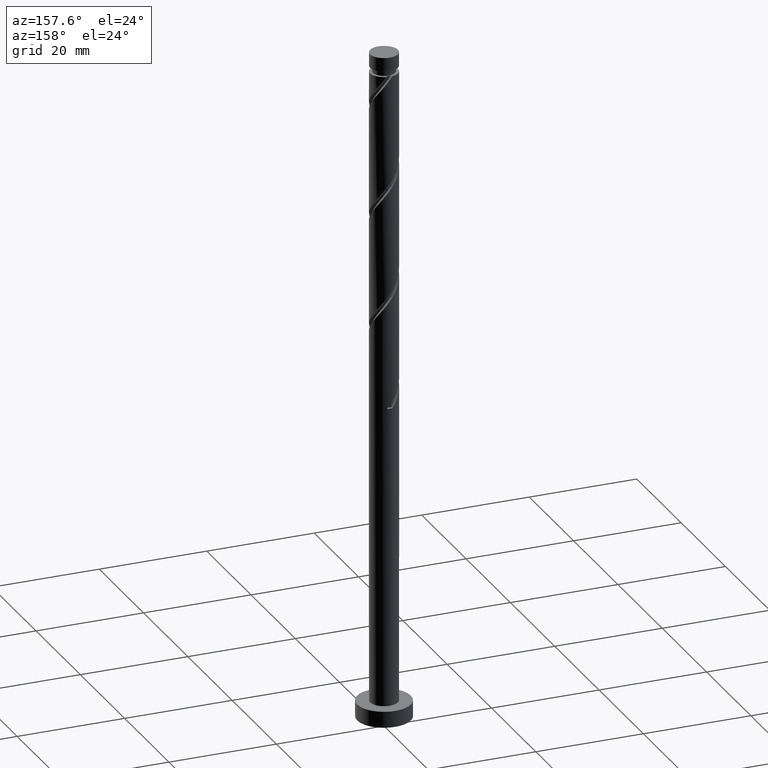
[diagram: clean part render]
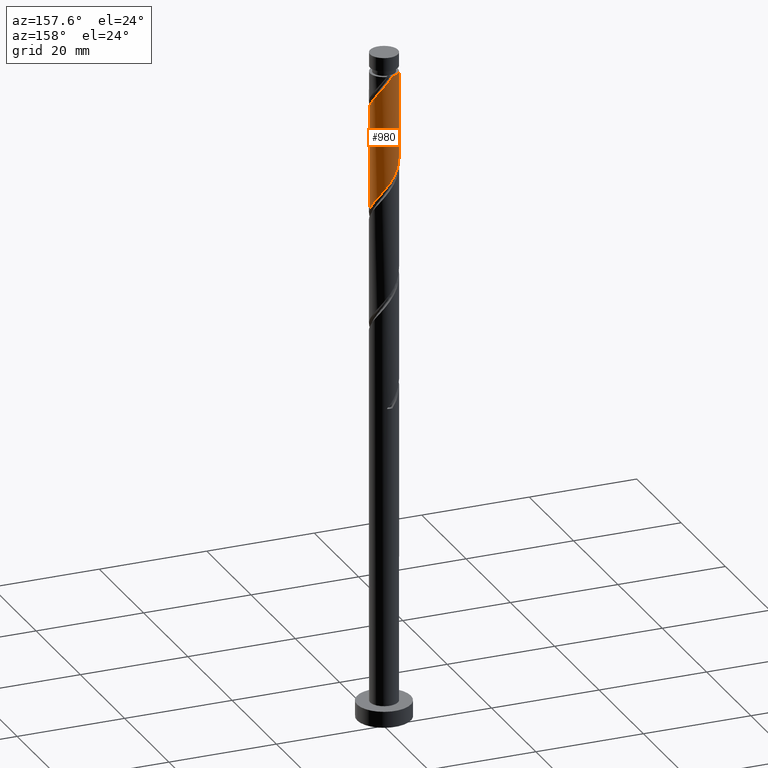
[diagram: same view with one face highlighted and labeled with its STEP entity id]
A machine part, auxiliary view. The second image highlights one B-rep face of the part: STEP entity #980.
In plain terms, the highlighted cylindrical surface (edge-blend (fillet) strip) has radius 2.6 mm, axis along (-0, -0, -1).
Its self-contained STEP definition (entity closure, byte-faithful):
#12 = ORIENTED_EDGE ( 'NONE', *, *, #745, .F. ) ;
#20 = EDGE_CURVE ( 'NONE', #40, #139, #1203, .T. ) ;
#25 = EDGE_LOOP ( 'NONE', ( #12, #870, #102, #342, #1351 ) ) ;
#40 = VERTEX_POINT ( 'NONE', #196 ) ;
#44 = CARTESIAN_POINT ( 'NONE',  ( 1.079096715020632535, 2.365491551376099011, 119.3381527913151103 ) ) ;
#48 = CARTESIAN_POINT ( 'NONE',  ( 1.916256930661813573, 1.757259051958635965, 98.50481945798182437 ) ) ;
#72 = CARTESIAN_POINT ( 'NONE',  ( 0.2953048731074934263, 2.583175377692925156, 120.3798194579818102 ) ) ;
#102 = ORIENTED_EDGE ( 'NONE', *, *, #20, .F. ) ;
#107 = CARTESIAN_POINT ( 'NONE',  ( -0.5173934672954414449, 2.547999999999995602, 121.4214861246484247 ) ) ;
#123 = CARTESIAN_POINT ( 'NONE',  ( -2.600000000000000089, 0.000000000000000000, 125.0000000000000000 ) ) ;
#132 = VERTEX_POINT ( 'NONE', #203 ) ;
#139 = VERTEX_POINT ( 'NONE', #245 ) ;
#196 = CARTESIAN_POINT ( 'NONE',  ( -2.599999999999999645, -1.544289586670198367E-15, 106.4612885661187391 ) ) ;
#203 = CARTESIAN_POINT ( 'NONE',  ( -2.599999999999997424, 0.000000000000000000, 121.4214861246484674 ) ) ;
#242 =( BOUNDED_CURVE ( )  B_SPLINE_CURVE ( 2, ( #430, #642, #311, #1373, #1128, #1134, #438, #788, #44, #1261, #72, #1500, #523 ),
 .UNSPECIFIED., .F., .T. ) 
 B_SPLINE_CURVE_WITH_KNOTS ( ( 3, 2, 2, 2, 2, 2, 3 ),
 ( 0.6795322023138551382, 0.6875000000000000000, 0.6999999999999999556, 0.7125000000000000222, 0.7249999999999999778, 0.7375000000000000444, 0.7500000000000000000 ),
 .UNSPECIFIED. ) 
 CURVE ( )  GEOMETRIC_REPRESENTATION_ITEM ( )  RATIONAL_B_SPLINE_CURVE ( ( 0.9039174447099420640, 0.9019565955404713620, 0.9090909090909198298, 0.8978984914501358938, 0.9090909090909198298, 0.8978984914501358938, 0.9090909090909198298, 0.8978984914501358938, 0.9090909090909198298, 0.8978984914501358938, 0.9090909090909198298, 0.8978984914501358938, 0.9090909090909198298 ) ) 
 REPRESENTATION_ITEM ( '' )  );
#245 = CARTESIAN_POINT ( 'NONE',  ( 2.599999999999999201, 3.598344667969393893E-15, 96.04462189945208195 ) ) ;
#257 = DIRECTION ( 'NONE',  ( -0.000000000000000000, -0.000000000000000000, -1.000000000000000000 ) ) ;
#303 = CARTESIAN_POINT ( 'NONE',  ( -1.757259051958636853, 1.916256930661813129, 103.7131527913151103 ) ) ;
#311 = CARTESIAN_POINT ( 'NONE',  ( 2.548000000000004039, 0.5173934672954426661, 116.2131527913151530 ) ) ;
#314 = CARTESIAN_POINT ( 'NONE',  ( -2.466052925254840211, 0.9209570212423611180, 105.2756527913151388 ) ) ;
#321 = CARTESIAN_POINT ( 'NONE',  ( 2.599999999999999201, 0.1481317173607268334, 96.23413298865935417 ) ) ;
#342 = ORIENTED_EDGE ( 'NONE', *, *, #399, .F. ) ;
#381 = EDGE_CURVE ( 'NONE', #1307, #139, #756, .T. ) ;
#399 = EDGE_CURVE ( 'NONE', #132, #40, #1480, .T. ) ;
#408 = CARTESIAN_POINT ( 'NONE',  ( 2.194579422111507583, 1.453753770477750562, 97.98398612464845314 ) ) ;
#426 = CARTESIAN_POINT ( 'NONE',  ( 2.600000000000004086, 8.845930642091356675E-16, 115.5483503498448670 ) ) ;
#430 = CARTESIAN_POINT ( 'NONE',  ( 2.600000000000004086, 8.845930642091356675E-16, 115.5483503498448670 ) ) ;
#438 = CARTESIAN_POINT ( 'NONE',  ( 1.757259051958640406, 1.916256930661815350, 118.2964861246484674 ) ) ;
#523 = CARTESIAN_POINT ( 'NONE',  ( -0.5173934672954414449, 2.547999999999996046, 121.4214861246484389 ) ) ;
#526 = CARTESIAN_POINT ( 'NONE',  ( -1.079096715020629649, 2.365491551376095458, 102.6714861246484816 ) ) ;
#554 = CARTESIAN_POINT ( 'NONE',  ( -2.547999999999999154, 0.5173934672954427771, 105.7964861246484531 ) ) ;
#572 = DIRECTION ( 'NONE',  ( -0.000000000000000000, -0.000000000000000000, -1.000000000000000000 ) ) ;
#642 = CARTESIAN_POINT ( 'NONE',  ( 2.600000000000004530, 0.2613098319673927139, 115.8826549252527229 ) ) ;
#645 = CARTESIAN_POINT ( 'NONE',  ( -0.7044396595635075142, 2.536403680640682445, 102.1506527913151388 ) ) ;
#653 = CARTESIAN_POINT ( 'NONE',  ( 2.536403680640682889, 0.7044396595635072922, 96.94231945798181016 ) ) ;
#663 = VECTOR ( 'NONE', #257, 1000.000000000000000 ) ;
#664 = CARTESIAN_POINT ( 'NONE',  ( 2.599999999999999201, 3.598344667969393893E-15, 96.04462189945208195 ) ) ;
#694 = CYLINDRICAL_SURFACE ( 'NONE', #1296, 2.600000000000000089 ) ;
#745 = EDGE_CURVE ( 'NONE', #1307, #1567, #242, .T. ) ;
#756 = LINE ( 'NONE', #1333, #663 ) ;
#765 = CARTESIAN_POINT ( 'NONE',  ( -1.453753770477751450, 2.194579422111507139, 103.1923194579817959 ) ) ;
#788 = CARTESIAN_POINT ( 'NONE',  ( 1.453753770477754559, 2.194579422111509359, 118.8173194579817959 ) ) ;
#790 = CARTESIAN_POINT ( 'NONE',  ( -2.263408629347179790, 1.279445730227240396, 104.7548194579818386 ) ) ;
#834 = FACE_OUTER_BOUND ( 'NONE', #25, .T. ) ;
#870 = ORIENTED_EDGE ( 'NONE', *, *, #381, .T. ) ;
#900 = CARTESIAN_POINT ( 'NONE',  ( 1.637934439212119342, 2.060764333439521589, 99.02565279131513876 ) ) ;
#906 = DIRECTION ( 'NONE',  ( -1.000000000000000000, 0.000000000000000000, 0.000000000000000000 ) ) ;
#920 = CARTESIAN_POINT ( 'NONE',  ( 0.9209570212423614510, 2.466052925254839323, 100.0673194579818244 ) ) ;
#931 = DIRECTION ( 'NONE',  ( -1.000000000000000000, 0.000000000000000000, 0.000000000000000000 ) ) ;
#957 = CARTESIAN_POINT ( 'NONE',  ( 0.000000000000000000, 0.000000000000000000, 125.0000000000000000 ) ) ;
#980 = ADVANCED_FACE ( 'NONE', ( #834 ), #694, .T. ) ;
#1092 = DIRECTION ( 'NONE',  ( -0.000000000000000000, -0.000000000000000000, -1.000000000000000000 ) ) ;
#1128 = CARTESIAN_POINT ( 'NONE',  ( 2.263408629347184675, 1.279445730227241729, 117.2548194579817959 ) ) ;
#1134 = CARTESIAN_POINT ( 'NONE',  ( 2.060764333439526030, 1.637934439212121340, 117.7756527913151245 ) ) ;
#1136 = CARTESIAN_POINT ( 'NONE',  ( 2.583175377692920716, 0.2953048731074912059, 96.42148612464846735 ) ) ;
#1145 = CARTESIAN_POINT ( 'NONE',  ( 0.5173934672954433323, 2.547999999999999154, 100.5881527913151530 ) ) ;
#1203 =( BOUNDED_CURVE ( )  B_SPLINE_CURVE ( 2, ( #1375, #1403, #554, #314, #790, #1281, #303, #765, #526, #645, #1496, #1263, #1145, #920, #1514, #900, #48, #408, #1411, #653, #1136, #321, #664 ),
 .UNSPECIFIED., .F., .T. ) 
 B_SPLINE_CURVE_WITH_KNOTS ( ( 3, 2, 2, 2, 2, 2, 2, 2, 2, 2, 2, 3 ),
 ( 0.4295322023138549716, 0.4375000000000000000, 0.4500000000000000111, 0.4625000000000000222, 0.4749999999999999778, 0.4874999999999999889, 0.5000000000000000000, 0.5124999999999999556, 0.5250000000000000222, 0.5374999999999999778, 0.5500000000000000444, 0.5545322023138551382 ),
 .UNSPECIFIED. ) 
 CURVE ( )  GEOMETRIC_REPRESENTATION_ITEM ( )  RATIONAL_B_SPLINE_CURVE ( ( 0.9039174447099349585, 0.9019565955404640345, 0.9090909090909123913, 0.8978984914501285663, 0.9090909090909123913, 0.8978984914501285663, 0.9090909090909123913, 0.8978984914501285663, 0.9090909090909123913, 0.8978984914501285663, 0.9090909090909123913, 0.8978984914501285663, 0.9090909090909123913, 0.8978984914501285663, 0.9090909090909123913, 0.8978984914501285663, 0.9090909090909123913, 0.8978984914501285663, 0.9090909090909123913, 0.8978984914501285663, 0.9090909090909123913, 0.9050328050005769231, 0.9039174447099347365 ) ) 
 REPRESENTATION_ITEM ( '' )  );
#1206 = DIRECTION ( 'NONE',  ( -0.000000000000000000, -0.000000000000000000, -1.000000000000000000 ) ) ;
#1225 = VECTOR ( 'NONE', #1092, 1000.000000000000000 ) ;
#1261 = CARTESIAN_POINT ( 'NONE',  ( 0.7044396595635099567, 2.536403680640686886, 119.8589861246484531 ) ) ;
#1263 = CARTESIAN_POINT ( 'NONE',  ( 0.1138299133485242975, 2.629947074745159430, 101.1089861246484531 ) ) ;
#1281 = CARTESIAN_POINT ( 'NONE',  ( -2.060764333439521589, 1.637934439212119120, 104.2339861246484389 ) ) ;
#1296 = AXIS2_PLACEMENT_3D ( 'NONE', #957, #572, #931 ) ;
#1307 = VERTEX_POINT ( 'NONE', #426 ) ;
#1323 = AXIS2_PLACEMENT_3D ( 'NONE', #1335, #1206, #906 ) ;
#1333 = CARTESIAN_POINT ( 'NONE',  ( 2.600000000000000089, 3.184081677783117698E-16, 125.0000000000000000 ) ) ;
#1335 = CARTESIAN_POINT ( 'NONE',  ( 0.000000000000000000, 0.000000000000000000, 121.4214861246484674 ) ) ;
#1351 = ORIENTED_EDGE ( 'NONE', *, *, #1462, .T. ) ;
#1373 = CARTESIAN_POINT ( 'NONE',  ( 2.466052925254843320, 0.9209570212423617841, 116.7339861246484531 ) ) ;
#1375 = CARTESIAN_POINT ( 'NONE',  ( -2.599999999999999201, -1.544289586670198367E-15, 106.4612885661187391 ) ) ;
#1403 = CARTESIAN_POINT ( 'NONE',  ( -2.600000000000000089, 0.2613098319673891057, 106.1269839907108832 ) ) ;
#1411 = CARTESIAN_POINT ( 'NONE',  ( 2.365491551376095902, 1.079096715020629205, 97.46315279131515297 ) ) ;
#1453 = CIRCLE ( 'NONE', #1323, 2.599999999999997424 ) ;
#1462 = EDGE_CURVE ( 'NONE', #132, #1567, #1453, .T. ) ;
#1480 = LINE ( 'NONE', #123, #1225 ) ;
#1496 = CARTESIAN_POINT ( 'NONE',  ( -0.2953048731074917055, 2.583175377692920271, 101.6298194579818244 ) ) ;
#1500 = CARTESIAN_POINT ( 'NONE',  ( -0.1138299133485232845, 2.629947074745163871, 120.9006527913151530 ) ) ;
#1514 = CARTESIAN_POINT ( 'NONE',  ( 1.279445730227240841, 2.263408629347179790, 99.54648612464848156 ) ) ;
#1567 = VERTEX_POINT ( 'NONE', #107 ) ;